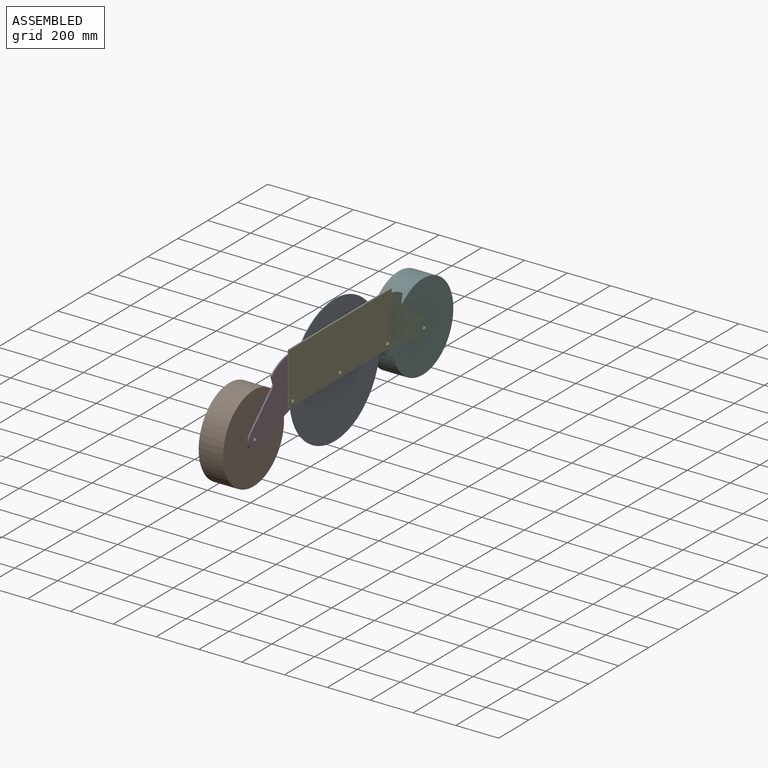
[diagram: assembled view]
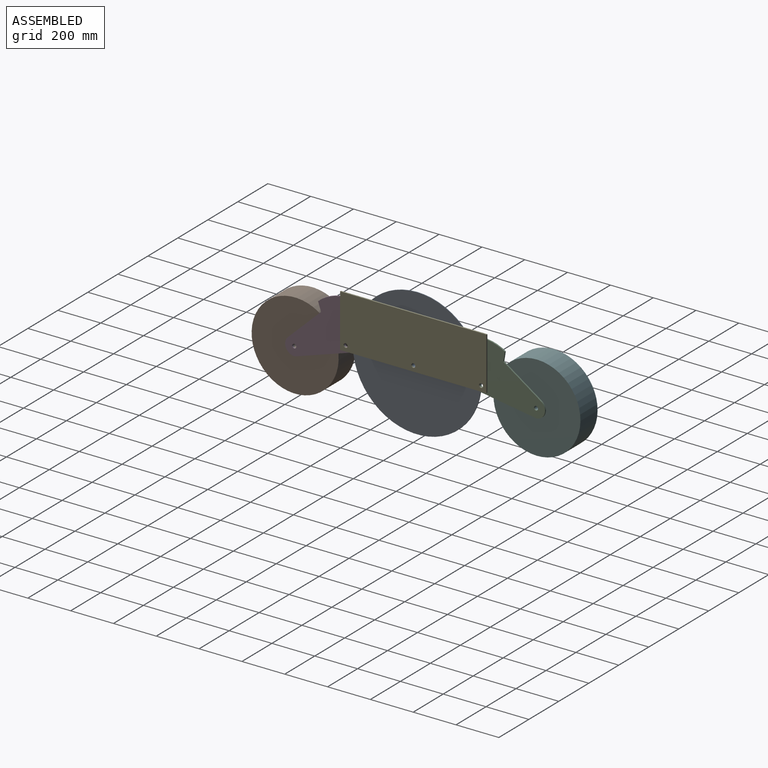
[diagram: assembled view, second angle]
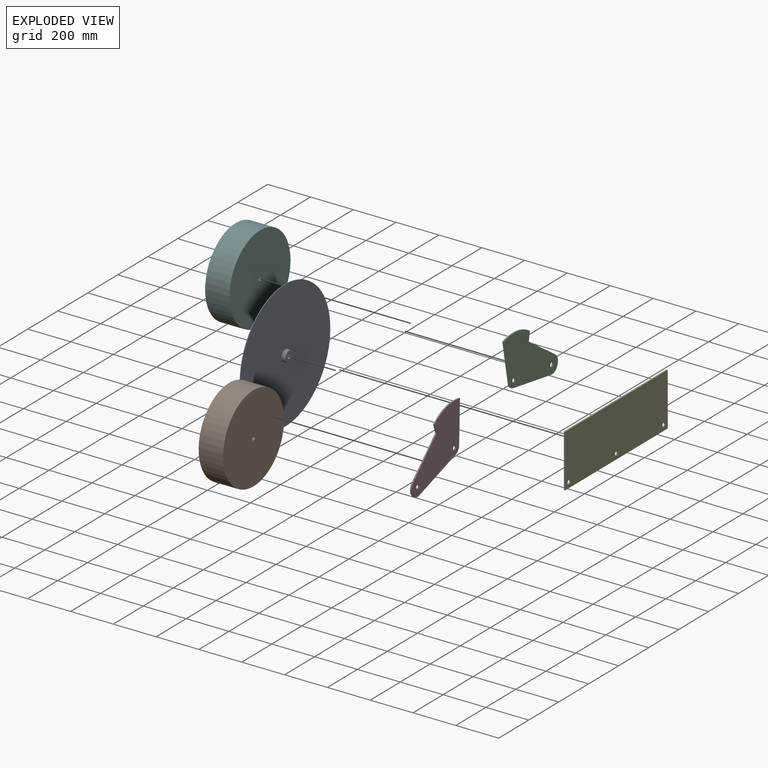
[diagram: exploded view]
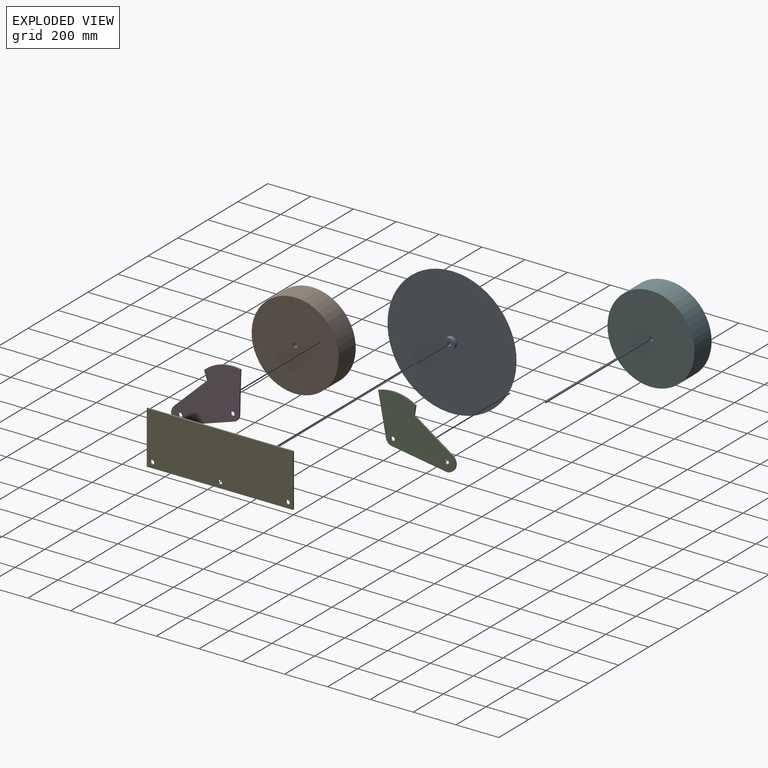
[diagram: exploded view, second angle]
ASSEMBLY  parts=6 mates=5
PART A: 6 faces, bbox 22.2x600x600 mm
  f0: cylinder r=9.53mm len=22.23mm, axis (-1,0,0), area 1330.1mm2, adj f2,f5
  f1: cylinder r=300mm len=600mm, axis (-1,0,0), area 5984.7mm2, adj f2,f3
  f2: plane 600x600mm, normal (1,0,0), area 282458.3mm2, adj f0,f1
  f3: plane 600x600mm, normal (-1,0,0), area 280608.2mm2, adj f1,f4
  f4: cylinder r=26.07mm len=52.14mm, axis (1,0,0), area 3120.4mm2, adj f3,f5
  f5: plane 52.14x52.14mm, normal (-1,0,0), area 1850.1mm2, adj f0,f4
PART B: 4 faces, bbox 114.3x406.4x406.4 mm
  f0: cylinder r=9.53mm len=114.3mm, axis (-1,0,0), area 6840.6mm2, adj f2,f3
  f1: cylinder r=203.2mm len=406.4mm, axis (-1,0,0), area 145931.8mm2, adj f2,f3
  f2: plane 406.4x406.4mm, normal (1,0,0), area 129432.1mm2, adj f0,f1
  f3: plane 406.4x406.4mm, normal (-1,0,0), area 129432.1mm2, adj f0,f1
PART C: 11 faces, bbox 6.4x393x231.8 mm
  f0: plane 44.09x6.35mm, normal (0,1,0), area 280mm2, adj f1,f8,f9,f10
  f1: cylinder r=200.04mm len=175.95mm, axis (-1,0,0), area 1158.4mm2, adj f0,f2,f9,f10
  f2: plane 185.81x66.95mm, normal (0,-0.94,-0.34), area 1254.2mm2, adj f1,f3,f9,f10
  f3: cylinder r=31.75mm len=29.87mm, axis (-1,0,0), area 247mm2, adj f2,f4,f9,f10
  f4: plane 262.03x6.35mm, normal (0,0,-1), area 1663.9mm2, adj f3,f5,f9,f10
  f5: cylinder r=42.19mm len=79.52mm, axis (-1,0,0), area 671.4mm2, adj f4,f8,f9,f10
  f6: cylinder r=9.53mm len=19.05mm, axis (-1,0,0), area 380mm2, adj f9,f10
  f7: cylinder r=9.53mm len=19.05mm, axis (-1,0,0), area 380mm2, adj f9,f10
  f8: plane 193x91.86mm, normal (0,0.43,0.9), area 1357.3mm2, adj f0,f5,f9,f10
  f9: plane 393.01x231.79mm, normal (1,0,0), area 56722.6mm2, adj f0,f1,f2,f3,f4,f5,f6,f7
  f10: plane 393.01x231.79mm, normal (-1,0,0), area 56722.6mm2, adj f0,f1,f2,f3,f4,f5,f6,f7
PART D: same geometry as C
PART E: 9 faces, bbox 6.4x683.6x247.4 mm
  f0: plane 247.36x6.35mm, normal (0,-1,0), area 1570.7mm2, adj f1,f5,f7,f8
  f1: plane 683.56x6.35mm, normal (0,0,-1), area 4340.6mm2, adj f0,f2,f7,f8
  f2: plane 247.36x6.35mm, normal (0,1,0), area 1570.7mm2, adj f1,f5,f7,f8
  f3: cylinder r=9.53mm len=19.05mm, axis (-1,0,0), area 380mm2, adj f7,f8
  f4: cylinder r=9.53mm len=19.05mm, axis (-1,0,0), area 380mm2, adj f7,f8
  f5: plane 683.56x6.35mm, normal (0,0,1), area 4340.6mm2, adj f0,f2,f7,f8
  f6: cylinder r=9.53mm len=19.05mm, axis (-1,0,0), area 380mm2, adj f7,f8
  f7: plane 683.56x247.36mm, normal (1,0,0), area 168229.7mm2, adj f0,f1,f2,f3,f4,f5,f6
  f8: plane 683.56x247.36mm, normal (-1,0,0), area 168229.7mm2, adj f0,f1,f2,f3,f4,f5,f6
PART F: same geometry as B
PLACE A rot(axis=(0,-0.74,-0.68),180deg) t=(-25.4,0,0)mm
PLACE B rot(axis=(-1,0,0),39.7deg) t=(-127,-560.66,-70.26)mm
PLACE C rot(axis=(-1,0,0),9deg) t=(-12.7,334.38,-12.62)mm
PLACE D rot(axis=(0,-0.16,0.99),180deg) t=(-6.35,-332.13,-15.33)mm
PLACE E t=(-6.35,0,0)mm
PLACE F rot(axis=(-1,0,0),15.5deg) t=(-127,568.74,-30.34)mm
MATE revolute F.f0 <-> C.f5  axis (-1,0,0) through (-12.7,568.74,-30.34)mm
MATE revolute C.f1 <-> E.f4  axis (1,0,0) through (-6.35,316.38,0)mm
MATE revolute A.f0 <-> E.f6  axis (1,0,0) through (-6.35,0,0)mm
MATE revolute E.f3 <-> D.f1  axis (-1,0,0) through (-6.35,-316.38,0)mm
MATE revolute B.f1 <-> D.f5  axis (1,0,0) through (-12.7,-560.66,-70.26)mm
